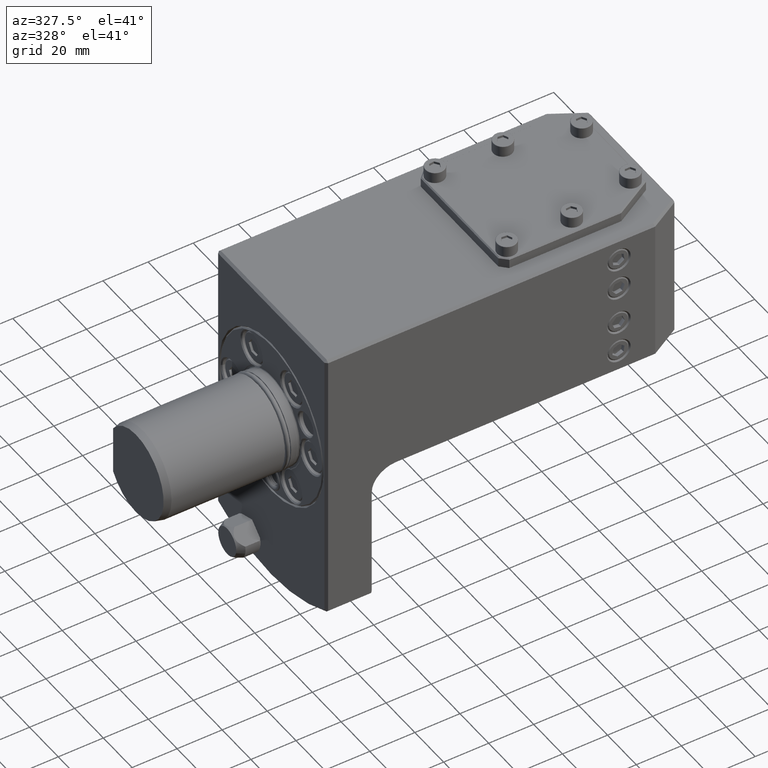
[diagram: clean part render]
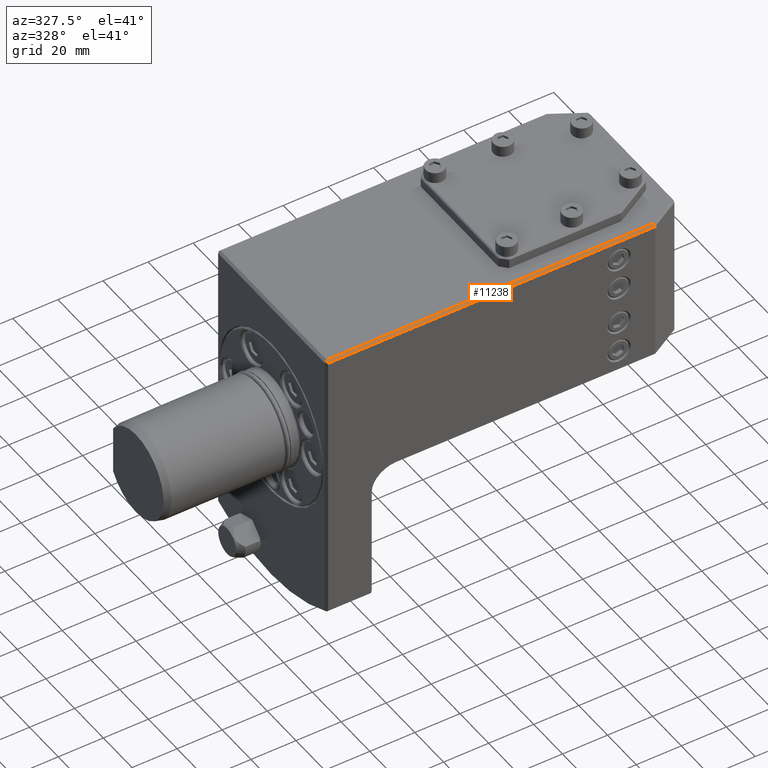
[diagram: same view with one face highlighted and labeled with its STEP entity id]
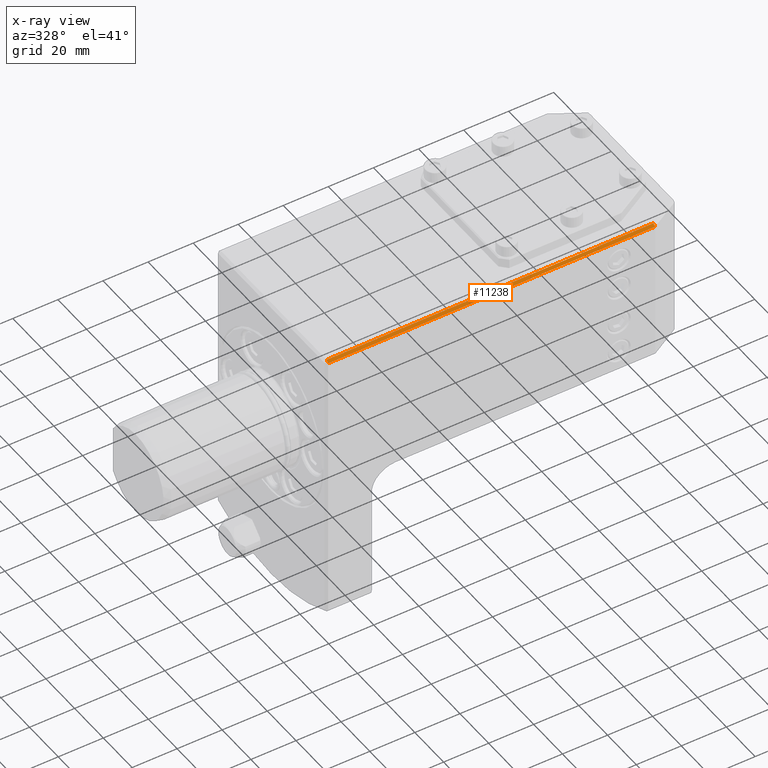
[diagram: x-ray of the same camera — body ghosted, the highlighted face saturated]
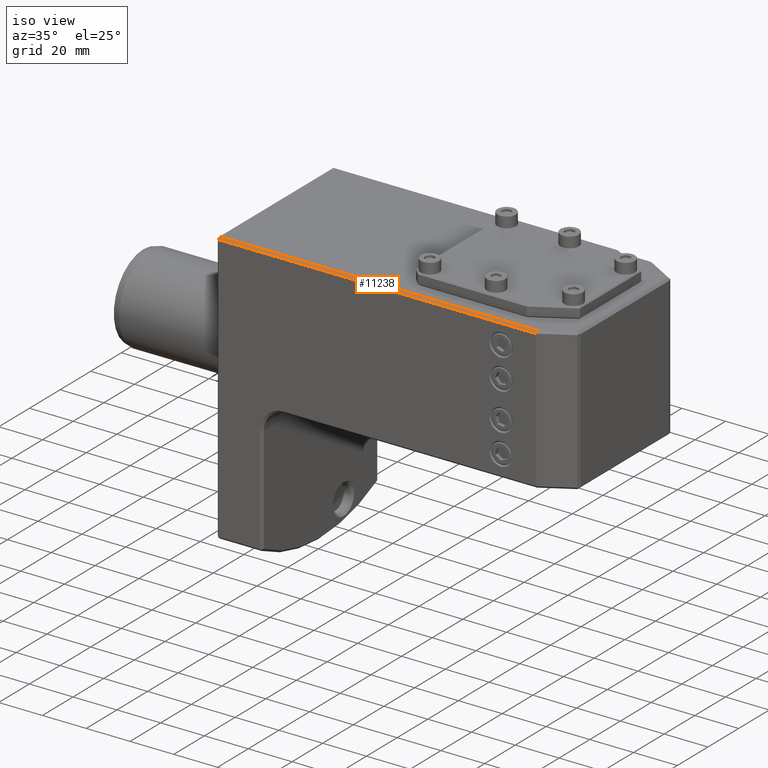
[diagram: same view with one face highlighted and labeled with its STEP entity id]
A machine part, auxiliary view. The second image highlights one B-rep face of the part: STEP entity #11238.
The next image is the same camera in x-ray: the body ghosted, the highlighted face saturated — about 0% of this face is hidden behind the body in this view.
A second angle (iso view) of the same face is appended — the face is thin or edge-on in the first view.
In plain terms, the highlighted planar face has unit normal (0, -0.7071, 0.7071).
Its self-contained STEP definition (entity closure, byte-faithful):
#10 = ORIENTED_EDGE ( 'NONE', *, *, #4688, .F. ) ;
#89 = CARTESIAN_POINT ( 'NONE',  ( 1.000000000000132783, -37.99999999999999289, 54.00000000000000000 ) ) ;
#899 = VERTEX_POINT ( 'NONE', #11620 ) ;
#1045 = ORIENTED_EDGE ( 'NONE', *, *, #8598, .F. ) ;
#1089 = LINE ( 'NONE', #4038, #11660 ) ;
#1529 = VECTOR ( 'NONE', #4346, 1000.000000000000227 ) ;
#1627 = VECTOR ( 'NONE', #9389, 1000.000000000000114 ) ;
#1740 = ORIENTED_EDGE ( 'NONE', *, *, #4741, .F. ) ;
#2198 = VERTEX_POINT ( 'NONE', #89 ) ;
#2621 = ORIENTED_EDGE ( 'NONE', *, *, #4208, .F. ) ;
#2842 = CARTESIAN_POINT ( 'NONE',  ( 146.1435935394491423, -37.99999999999948841, 54.00000000000000000 ) ) ;
#3176 = DIRECTION ( 'NONE',  ( 2.438184262748598206E-15, -0.7071067811865475727, 0.7071067811865475727 ) ) ;
#3248 = DIRECTION ( 'NONE',  ( -1.000000000000000000, -3.491481338843133355E-15, -4.336808689942019585E-17 ) ) ;
#3582 = DIRECTION ( 'NONE',  ( 1.000000000000000000, 3.491481338843133355E-15, 4.336808689942019585E-17 ) ) ;
#3586 = VERTEX_POINT ( 'NONE', #7002 ) ;
#4038 = CARTESIAN_POINT ( 'NONE',  ( 1.327196589629384877E-13, -38.00000000000000000, 54.00000000000000000 ) ) ;
#4121 = VECTOR ( 'NONE', #3582, 1000.000000000000000 ) ;
#4208 = EDGE_CURVE ( 'NONE', #7043, #2198, #1089, .T. ) ;
#4346 = DIRECTION ( 'NONE',  ( 0.1861567878974023371, -0.6947465906068630570, -0.6947465906068638342 ) ) ;
#4688 = EDGE_CURVE ( 'NONE', #2198, #899, #11489, .T. ) ;
#4741 = EDGE_CURVE ( 'NONE', #3586, #7043, #6570, .T. ) ;
#5576 = CARTESIAN_POINT ( 'NONE',  ( 1.000000000000132783, -37.99999999999999289, 54.00000000000000000 ) ) ;
#6385 = FACE_OUTER_BOUND ( 'NONE', #11398, .T. ) ;
#6570 = LINE ( 'NONE', #9320, #1529 ) ;
#7002 = CARTESIAN_POINT ( 'NONE',  ( 145.8756443470179534, -36.99999999999948841, 55.00000000000000000 ) ) ;
#7043 = VERTEX_POINT ( 'NONE', #2842 ) ;
#8148 = PLANE ( 'NONE',  #10884 ) ;
#8598 = EDGE_CURVE ( 'NONE', #899, #3586, #11708, .T. ) ;
#8814 = CARTESIAN_POINT ( 'NONE',  ( 146.1435935394491423, -36.99999999999948130, 55.00000000000000000 ) ) ;
#9320 = CARTESIAN_POINT ( 'NONE',  ( 146.6237782942451418, -39.79207390191798765, 52.20792609808150075 ) ) ;
#9389 = DIRECTION ( 'NONE',  ( -2.468850131082265738E-15, 0.7071067811865474617, 0.7071067811865474617 ) ) ;
#10446 = CARTESIAN_POINT ( 'NONE',  ( 160.0000000000001421, -37.99999999999943867, 54.00000000000000000 ) ) ;
#10884 = AXIS2_PLACEMENT_3D ( 'NONE', #10446, #3176, #11428 ) ;
#11238 = ADVANCED_FACE ( 'NONE', ( #6385 ), #8148, .T. ) ;
#11398 = EDGE_LOOP ( 'NONE', ( #10, #2621, #1740, #1045 ) ) ;
#11428 = DIRECTION ( 'NONE',  ( 1.000000000000000000, 3.491481338843133355E-15, 4.336808689942019585E-17 ) ) ;
#11489 = LINE ( 'NONE', #5576, #1627 ) ;
#11620 = CARTESIAN_POINT ( 'NONE',  ( 1.000000000000129230, -36.99999999999999289, 55.00000000000000000 ) ) ;
#11660 = VECTOR ( 'NONE', #3248, 1000.000000000000000 ) ;
#11708 = LINE ( 'NONE', #8814, #4121 ) ;